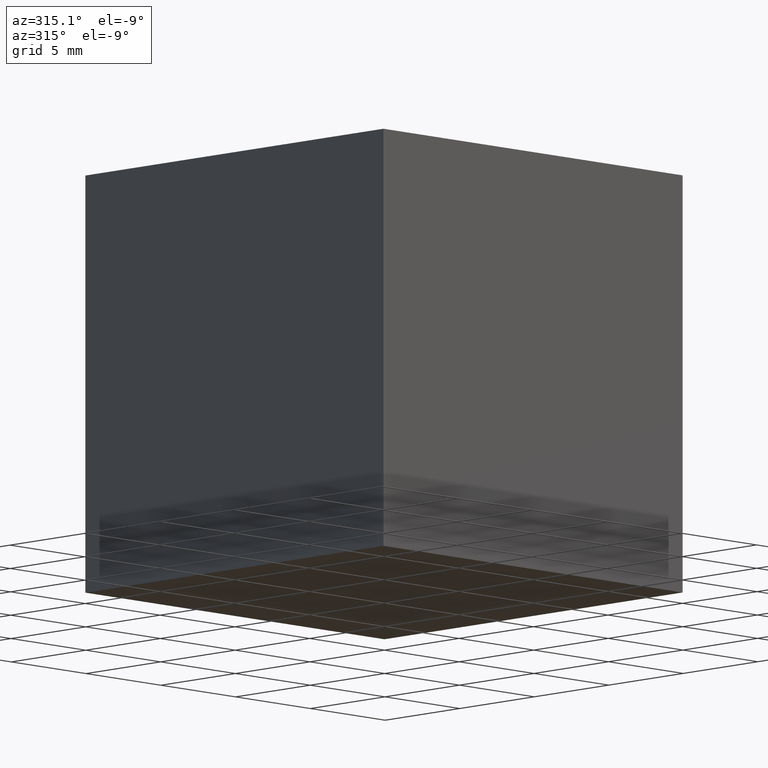
[diagram: clean part render]
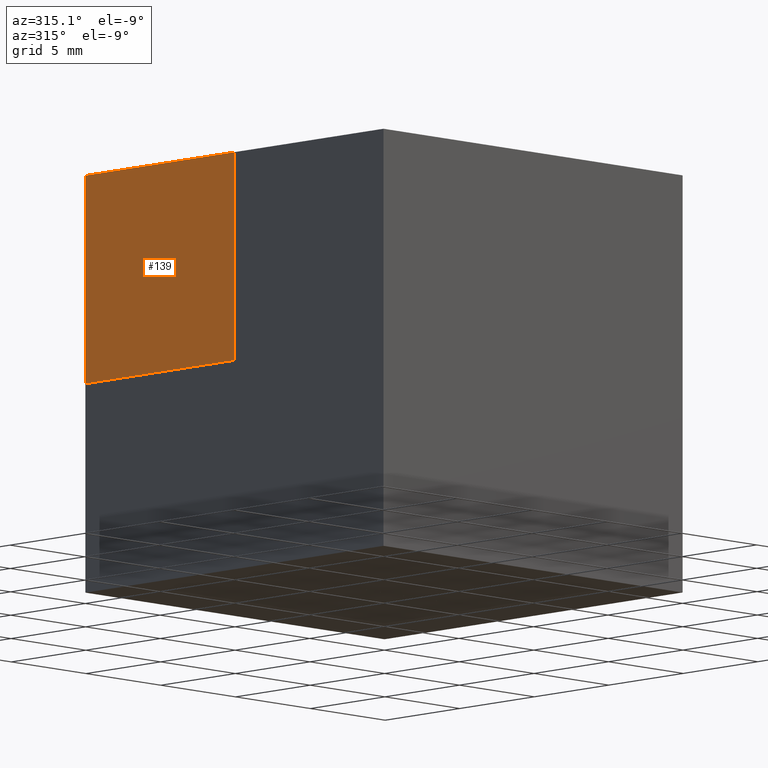
[diagram: same view with one face highlighted and labeled with its STEP entity id]
A machine part, auxiliary view. The second image highlights one B-rep face of the part: STEP entity #139.
In plain terms, the highlighted planar face has unit normal (1, 0, -0).
Its self-contained STEP definition (entity closure, byte-faithful):
#16 = CARTESIAN_POINT ( 'NONE',  ( -10.00000000000000178, 0.01999999999999701669, 0.01999999999999940020 ) ) ;
#19 = VECTOR ( 'NONE', #932, 1000.000000000000000 ) ;
#24 = EDGE_CURVE ( 'NONE', #619, #1264, #461, .T. ) ;
#32 = CARTESIAN_POINT ( 'NONE',  ( -10.00000000000000178, 10.00000000000000178, 10.00000000000000000 ) ) ;
#139 = ADVANCED_FACE ( 'NONE', ( #1347 ), #1206, .F. ) ;
#209 = CARTESIAN_POINT ( 'NONE',  ( -10.00000000000001599, 0.01999999999999701669, 0.01999999999999940020 ) ) ;
#238 = CARTESIAN_POINT ( 'NONE',  ( -10.00000000000000178, 10.00000000000000178, 10.00000000000000000 ) ) ;
#260 = AXIS2_PLACEMENT_3D ( 'NONE', #32, #615, #771 ) ;
#275 = VECTOR ( 'NONE', #348, 1000.000000000000000 ) ;
#348 = DIRECTION ( 'NONE',  ( -1.734723475976807341E-16, 1.000000000000000000, 8.986357560649834420E-16 ) ) ;
#461 = LINE ( 'NONE', #1376, #275 ) ;
#505 = VERTEX_POINT ( 'NONE', #1887 ) ;
#564 = ORIENTED_EDGE ( 'NONE', *, *, #937, .T. ) ;
#573 = ORIENTED_EDGE ( 'NONE', *, *, #764, .F. ) ;
#577 = VERTEX_POINT ( 'NONE', #1403 ) ;
#615 = DIRECTION ( 'NONE',  ( 1.000000000000000000, 1.734723475976807094E-16, -0.0000000000000000000 ) ) ;
#619 = VERTEX_POINT ( 'NONE', #209 ) ;
#764 = EDGE_CURVE ( 'NONE', #577, #619, #1646, .T. ) ;
#771 = DIRECTION ( 'NONE',  ( -1.734723475976807094E-16, 1.000000000000000000, 0.0000000000000000000 ) ) ;
#793 = CARTESIAN_POINT ( 'NONE',  ( -9.999916738503856095, 9.999958259960735063, 0.02000000000000302577 ) ) ;
#825 = DIRECTION ( 'NONE',  ( -0.0000000000000000000, -0.0000000000000000000, -1.000000000000000000 ) ) ;
#932 = DIRECTION ( 'NONE',  ( -3.191973638004405607E-32, 1.840047524696715418E-16, -1.000000000000000000 ) ) ;
#934 = CARTESIAN_POINT ( 'NONE',  ( -10.00000000000000178, 10.00000000000000178, 9.999900000000000233 ) ) ;
#937 = EDGE_CURVE ( 'NONE', #505, #1264, #1558, .T. ) ;
#1035 = VECTOR ( 'NONE', #825, 1000.000000000000000 ) ;
#1049 = EDGE_LOOP ( 'NONE', ( #1109, #564, #1771, #573 ) ) ;
#1109 = ORIENTED_EDGE ( 'NONE', *, *, #1661, .F. ) ;
#1206 = PLANE ( 'NONE',  #260 ) ;
#1264 = VERTEX_POINT ( 'NONE', #793 ) ;
#1347 = FACE_OUTER_BOUND ( 'NONE', #1049, .T. ) ;
#1376 = CARTESIAN_POINT ( 'NONE',  ( -10.00000000000000178, 10.00000000000000711, 0.02000000000000836872 ) ) ;
#1403 = CARTESIAN_POINT ( 'NONE',  ( -10.00000000000000888, 0.01999999999999743650, 9.999900000000005562 ) ) ;
#1491 = VECTOR ( 'NONE', #1520, 1000.000000000000000 ) ;
#1520 = DIRECTION ( 'NONE',  ( 1.734723475976807094E-16, -1.000000000000000000, 0.0000000000000000000 ) ) ;
#1558 = LINE ( 'NONE', #238, #1035 ) ;
#1646 = LINE ( 'NONE', #16, #19 ) ;
#1661 = EDGE_CURVE ( 'NONE', #505, #577, #1687, .T. ) ;
#1687 = LINE ( 'NONE', #934, #1491 ) ;
#1771 = ORIENTED_EDGE ( 'NONE', *, *, #24, .F. ) ;
#1887 = CARTESIAN_POINT ( 'NONE',  ( -10.00000000000000178, 10.00000000000000178, 9.999900000000000233 ) ) ;